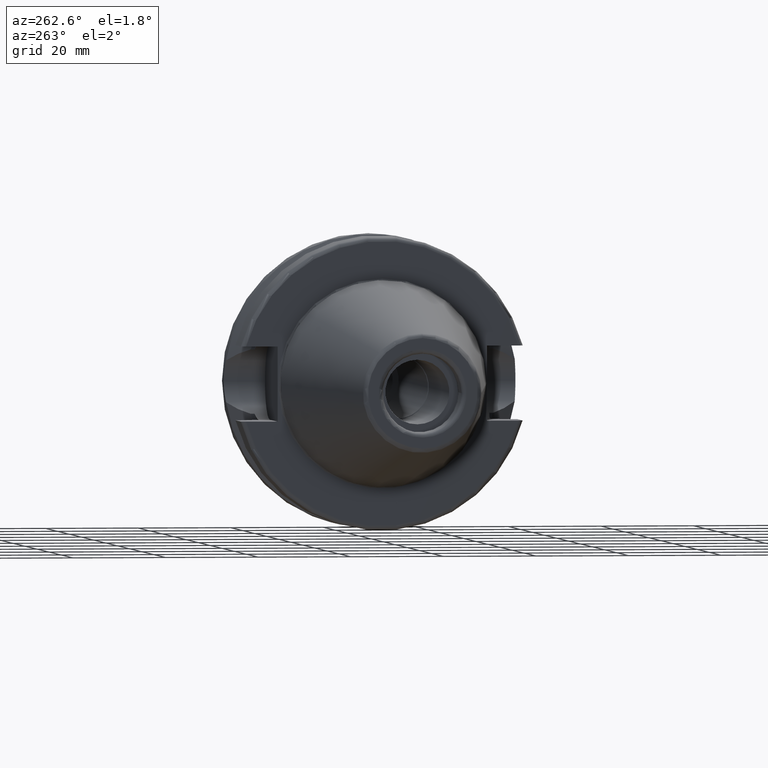
[diagram: clean part render]
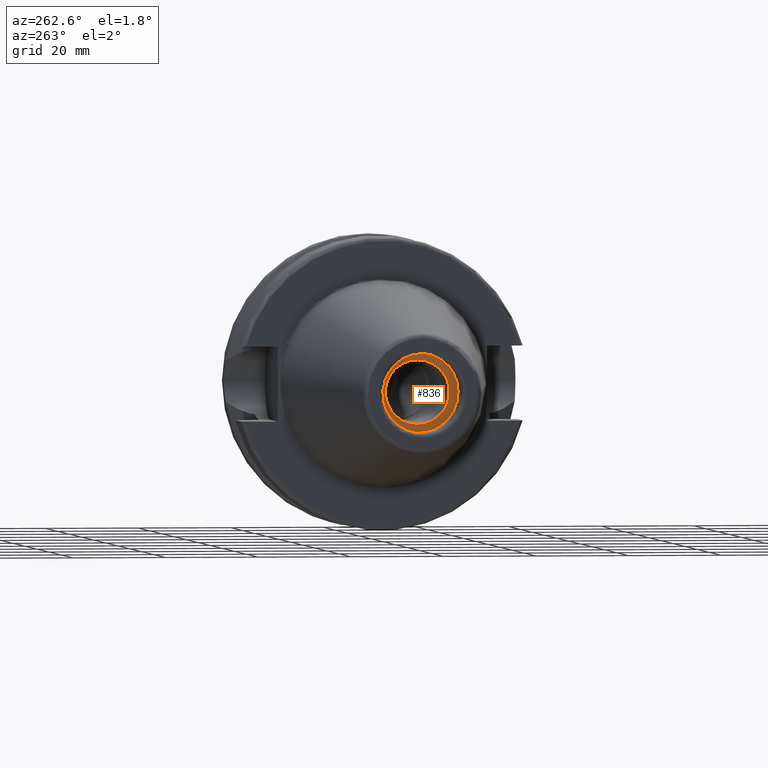
[diagram: same view with one face highlighted and labeled with its STEP entity id]
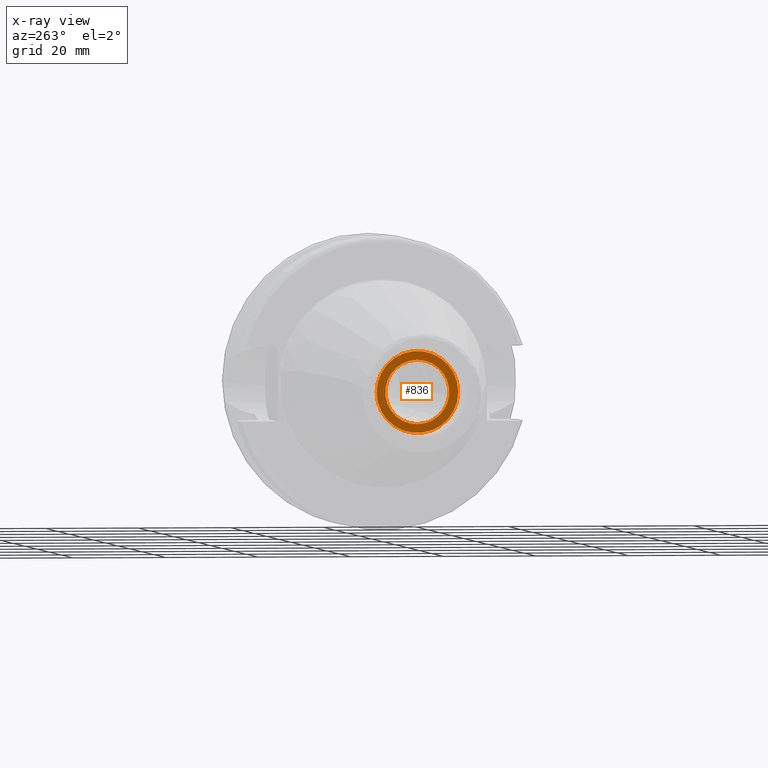
[diagram: x-ray of the same camera — body ghosted, the highlighted face saturated]
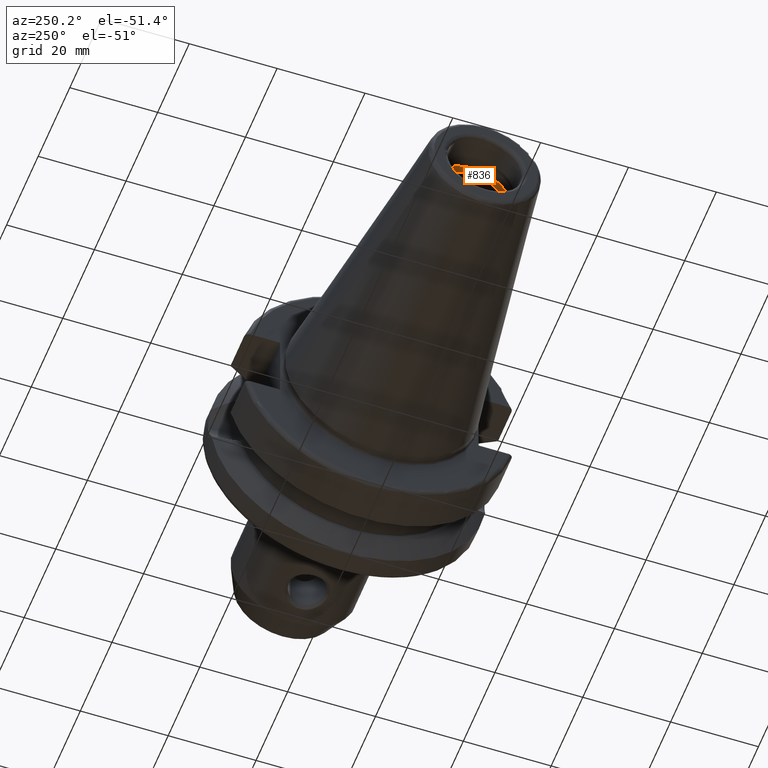
[diagram: same view with one face highlighted and labeled with its STEP entity id]
A machine part, auxiliary view. The second image highlights one B-rep face of the part: STEP entity #836.
The next image is the same camera in x-ray: the body ghosted, the highlighted face saturated — about 0% of this face is hidden behind the body in this view.
A second angle (auxiliary view) of the same face is appended — the face is thin or edge-on in the first view.
In plain terms, the highlighted planar face has unit normal (-1, 0, 0).
Its self-contained STEP definition (entity closure, byte-faithful):
#32=PLANE('',#954);
#57=FACE_BOUND('',#226,.T.);
#74=CIRCLE('',#892,6.9175);
#106=CIRCLE('',#955,8.8);
#171=FACE_OUTER_BOUND('',#225,.T.);
#225=EDGE_LOOP('',(#770));
#226=EDGE_LOOP('',(#771));
#361=VERTEX_POINT('',#1478);
#417=VERTEX_POINT('',#1754);
#450=EDGE_CURVE('',#361,#361,#74,.T.);
#536=EDGE_CURVE('',#417,#417,#106,.T.);
#770=ORIENTED_EDGE('',*,*,#536,.F.);
#771=ORIENTED_EDGE('',*,*,#450,.T.);
#836=ADVANCED_FACE('',(#171,#57),#32,.T.);
#892=AXIS2_PLACEMENT_3D('',#1479,#1031,#1032);
#954=AXIS2_PLACEMENT_3D('',#1753,#1190,#1191);
#955=AXIS2_PLACEMENT_3D('',#1755,#1192,#1193);
#1031=DIRECTION('center_axis',(1.,0.,0.));
#1032=DIRECTION('ref_axis',(0.,0.,1.));
#1190=DIRECTION('center_axis',(-1.,0.,0.));
#1191=DIRECTION('ref_axis',(0.,0.,1.));
#1192=DIRECTION('center_axis',(1.,0.,0.));
#1193=DIRECTION('ref_axis',(0.,0.,-1.));
#1478=CARTESIAN_POINT('',(-56.4,8.47149423310182E-16,-6.9175));
#1479=CARTESIAN_POINT('Origin',(-56.4,0.,0.));
#1753=CARTESIAN_POINT('Origin',(-56.4,8.8,0.));
#1754=CARTESIAN_POINT('',(-56.4,-8.8,-1.07768918324967E-15));
#1755=CARTESIAN_POINT('Origin',(-56.4,0.,0.));